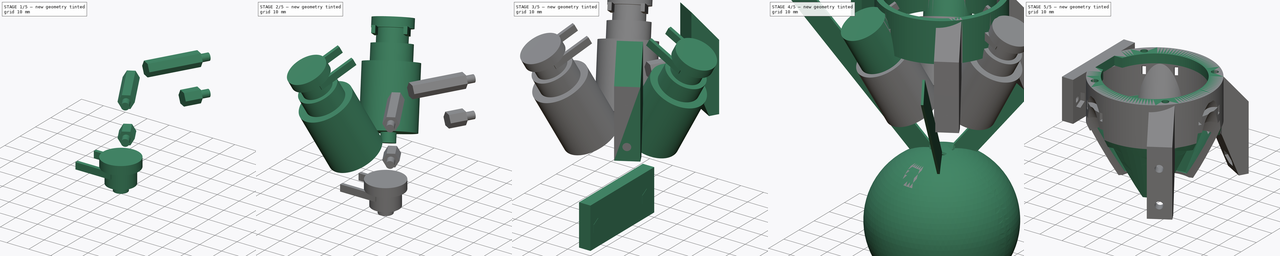
[diagram: build sequence overview — one tinted view per stage of 5, left to right]
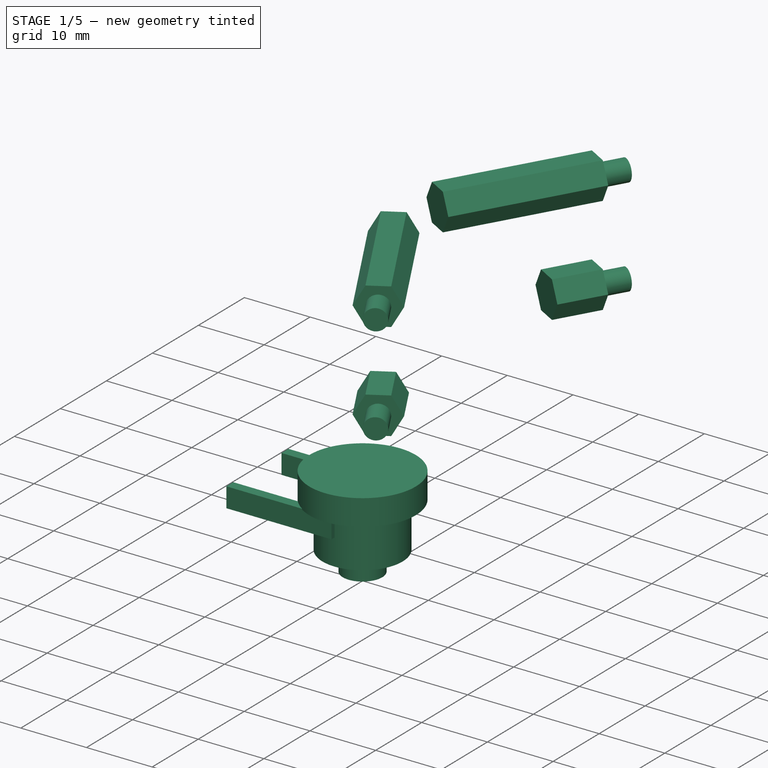
[diagram: stage 1 of 5 — iso view after this stage's code; geometry added in this stage tinted green]
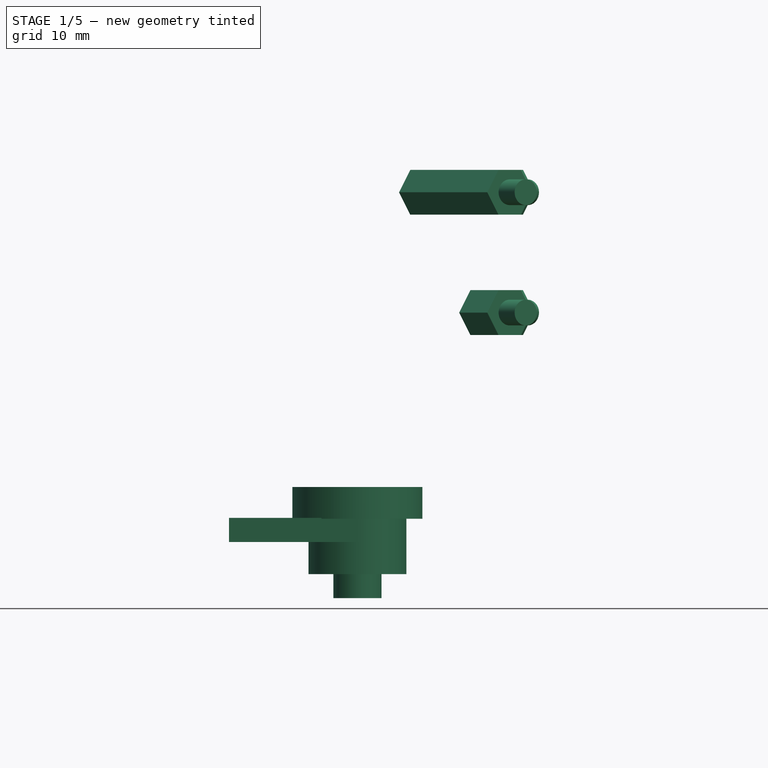
[diagram: stage 1 of 5 — front view after this stage's code; geometry added in this stage tinted green]
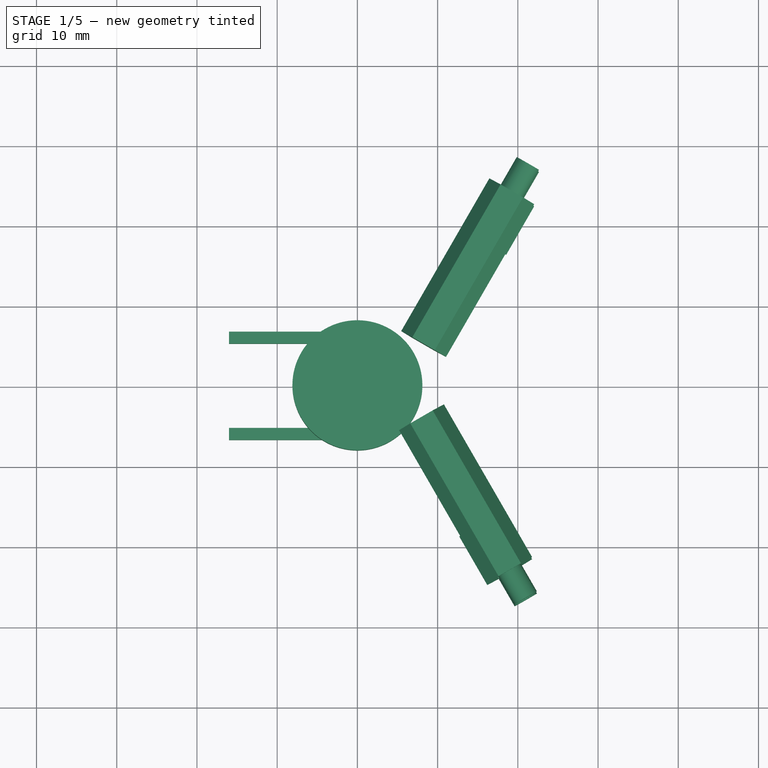
[diagram: stage 1 of 5 — top view after this stage's code; geometry added in this stage tinted green]
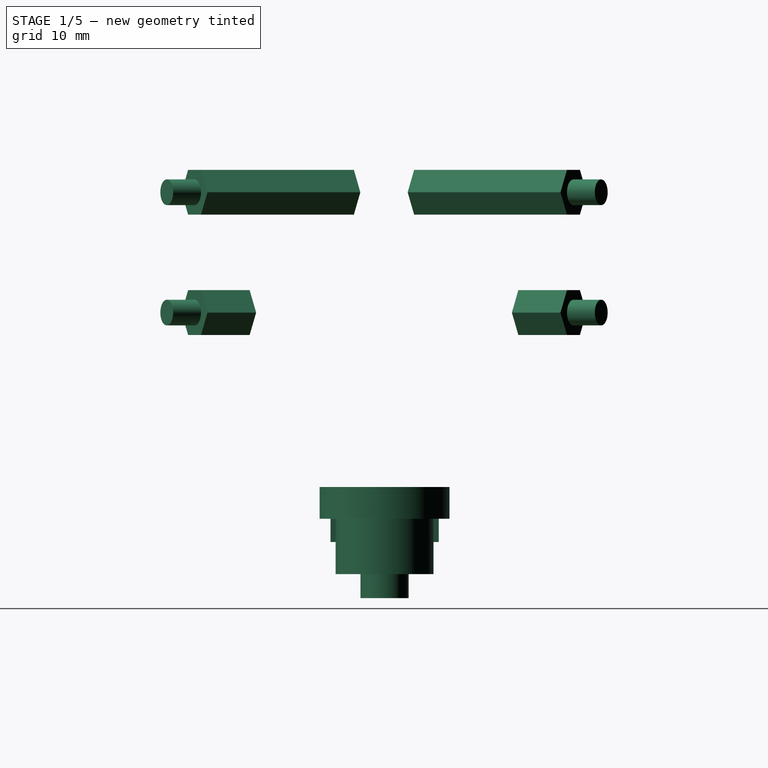
[diagram: stage 1 of 5 — right view after this stage's code; geometry added in this stage tinted green]
FCSTD DOCUMENT  (FreeCAD 0.19R)
Label: hotend-diamond-blower-40mm-fan
License: All rights reserved
LicenseURL: http://en.wikipedia.org/wiki/All_rights_reserved
objects: Part::Cylinder×30, Part::Fuse×23, Part::Box×17, Part::MultiFuse×12, Part::Prism×8, Part::Cut×7, Sketcher::SketchObject×3, Part::Cone×2, Part::Sphere×2, Part::FeaturePython×2, PartDesign::Pocket×2, PartDesign::FeatureBase×1, PartDesign::Pad×1, PartDesign::Body×1
note: 114 computed .brp shape members not serialized (recipe doc carries the construction recipe); baked Part::Feature solids carry a one-line shape summary decoded from their .brp

FEATURE [Part::Cylinder] cylinder025
  Angle = 360
  AttacherType = Attacher::AttachEngine3D
  Height = 8
  Placement = pos=(0,0,-1) rot=(0,0,1;0rad)
  Radius = 6.1
FEATURE [Part::Cylinder] cylinder026
  Angle = 360
  AttacherType = Attacher::AttachEngine3D
  Height = 3.95
  Placement = pos=(0,0,5.9) rot=(0,0,1;0rad)
  Radius = 8.1
FEATURE [Part::Box] cube015
  AttacherType = Attacher::AttachEngine3D
  Height = 3.01
  Length = 16
  Placement = pos=(-16,-6.75,2.995) rot=(0,0,1;0rad)
  Width = 1.5
FEATURE [Part::Box] cube016
  AttacherType = Attacher::AttachEngine3D
  Height = 3.01
  Length = 16
  Placement = pos=(-16,5.25,2.995) rot=(0,0,1;0rad)
  Width = 1.5
FEATURE [Part::Fuse] Group006
  Base = -> cube015
  Tool = -> cube016
FEATURE [Part::Cylinder] cylinder027
  Angle = 360
  AttacherType = Attacher::AttachEngine3D
  Height = 4
  Placement = pos=(0,0,0) rot=(1,0,0;3.14159rad)
  Radius = 3
FEATURE [Part::Cylinder] cylinder028
  Angle = 360
  AttacherType = Attacher::AttachEngine3D
  Height = 10
  Radius = 1.6
FEATURE [Part::Prism] prism004
  AttacherType = Attacher::AttachEngine3D
  Circumradius = 3.225
  FirstAngle = 0
  Height = 22
  Placement = pos=(0,0,4) rot=(0,0,1;0rad)
  Polygon = 6
  SecondAngle = 0
FEATURE [Part::Fuse] union018
  Base = -> cylinder028
  Placement = pos=(-21,-5,0) rot=(1,0,0;3.14159rad)
  Tool = -> prism004
FEATURE [Part::Cylinder] cylinder029
  Angle = 360
  AttacherType = Attacher::AttachEngine3D
  Height = 10
  Radius = 1.6
FEATURE [Part::Prism] prism005
  AttacherType = Attacher::AttachEngine3D
  Circumradius = 3.225
  FirstAngle = 0
  Height = 7
  Placement = pos=(0,0,4) rot=(0,0,1;0rad)
  Polygon = 6
  SecondAngle = 0
FEATURE [Part::Fuse] union019
  Base = -> cylinder029
  Placement = pos=(-21,-20,0) rot=(1,0,0;3.14159rad)
  Tool = -> prism005
FEATURE [Part::Fuse] Group008
  Base = -> union018
  Placement = pos=(3.06199,37.5035,51.6) rot=(0.186157,0.694747,0.694747;2.77349rad)
  Tool = -> union019
FEATURE [Part::Cylinder] cylinder030
  Angle = 360
  AttacherType = Attacher::AttachEngine3D
  Height = 10
  Radius = 1.6
FEATURE [Part::Prism] prism006
  AttacherType = Attacher::AttachEngine3D
  Circumradius = 3.225
  FirstAngle = 0
  Height = 22
  Placement = pos=(0,0,4) rot=(0,0,1;0rad)
  Polygon = 6
  SecondAngle = 0
FEATURE [Part::Fuse] union020
  Base = -> cylinder030
  Placement = pos=(-21,-5,0) rot=(1,0,0;3.14159rad)
  Tool = -> prism006
FEATURE [Part::Cylinder] cylinder031
  Angle = 360
  AttacherType = Attacher::AttachEngine3D
  Height = 10
  Radius = 1.6
FEATURE [Part::Prism] prism007
  AttacherType = Attacher::AttachEngine3D
  Circumradius = 3.225
  FirstAngle = 0
  Height = 7
  Placement = pos=(0,0,4) rot=(0,0,1;0rad)
  Polygon = 6
  SecondAngle = 0
FEATURE [Part::Fuse] union021
  Base = -> cylinder031
  Placement = pos=(-21,-20,0) rot=(1,0,0;3.14159rad)
  Tool = -> prism007
FEATURE [Part::Fuse] Group009
  Base = -> union020
  Placement = pos=(39.1753,-16.6535,51.6) rot=(0.935113,0.250563,0.250563;1.63783rad)
  Tool = -> union021
FEATURE [Part::Fuse] Group010
  Base = -> Group008
  Tool = -> Group009
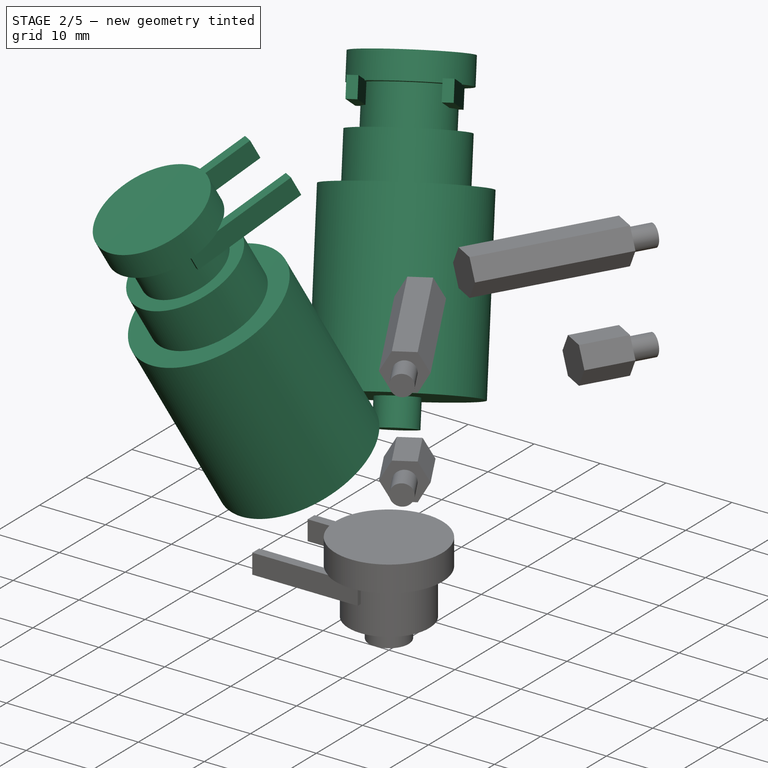
[diagram: stage 2 of 5 — iso view after this stage's code; geometry added in this stage tinted green]
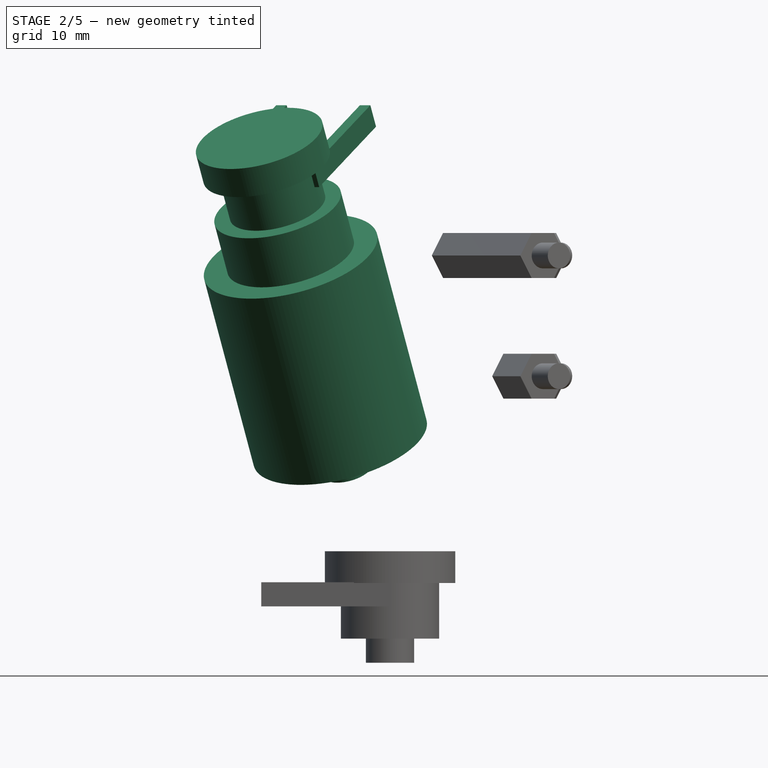
[diagram: stage 2 of 5 — front view after this stage's code; geometry added in this stage tinted green]
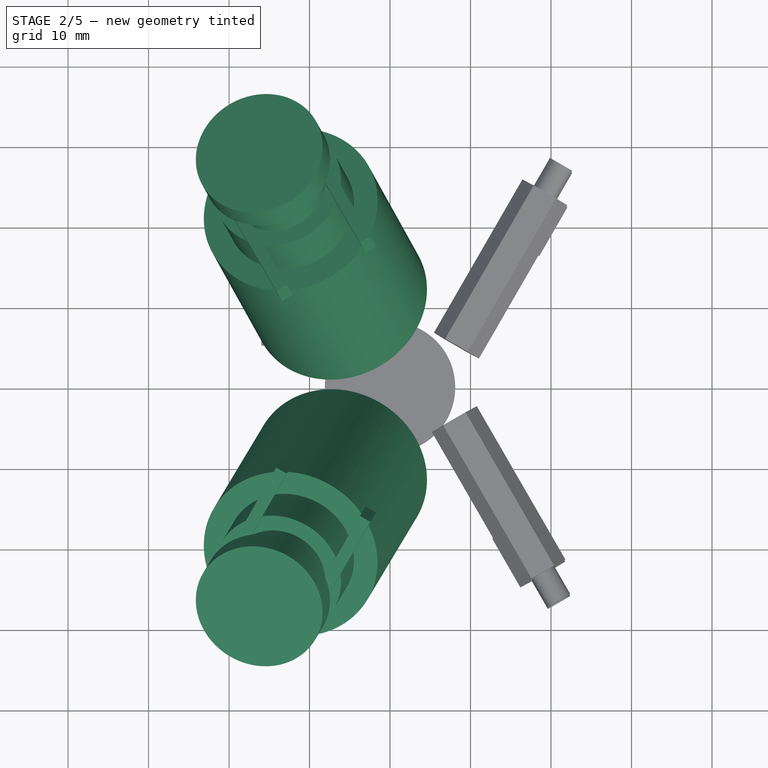
[diagram: stage 2 of 5 — top view after this stage's code; geometry added in this stage tinted green]
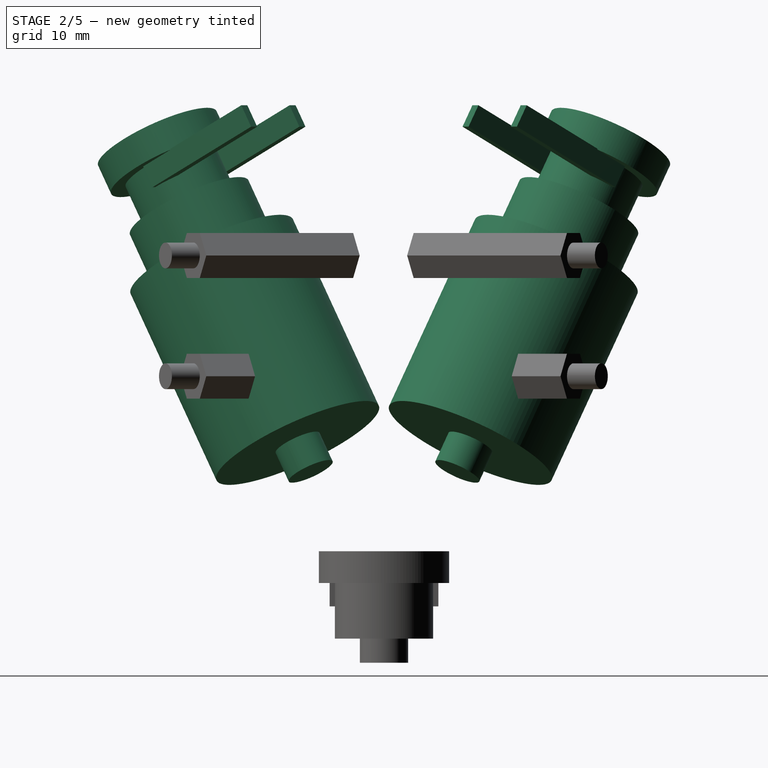
[diagram: stage 2 of 5 — right view after this stage's code; geometry added in this stage tinted green]
FEATURE [Part::Cylinder] cylinder015
  Angle = 360
  AttacherType = Attacher::AttachEngine3D
  Height = 8
  Placement = pos=(0,0,-1) rot=(0,0,1;0rad)
  Radius = 6.1
FEATURE [Part::Cylinder] cylinder016
  Angle = 360
  AttacherType = Attacher::AttachEngine3D
  Height = 3.95
  Placement = pos=(0,0,5.9) rot=(0,0,1;0rad)
  Radius = 8.1
FEATURE [Part::Box] cube011
  AttacherType = Attacher::AttachEngine3D
  Height = 3.01
  Length = 16
  Placement = pos=(-16,-6.75,2.995) rot=(0,0,1;0rad)
  Width = 1.5
FEATURE [Part::Box] cube012
  AttacherType = Attacher::AttachEngine3D
  Height = 3.01
  Length = 16
  Placement = pos=(-16,5.25,2.995) rot=(0,0,1;0rad)
  Width = 1.5
FEATURE [Part::Fuse] Group004
  Base = -> cube011
  Tool = -> cube012
FEATURE [Part::Cylinder] cylinder017
  Angle = 360
  AttacherType = Attacher::AttachEngine3D
  Height = 4
  Placement = pos=(0,0,0) rot=(1,0,0;3.14159rad)
  Radius = 3
FEATURE [Part::Cylinder] cylinder018
  Angle = 360
  AttacherType = Attacher::AttachEngine3D
  Height = 26.2
  Radius = 11.1
FEATURE [Part::Cylinder] cylinder019
  Angle = 360
  AttacherType = Attacher::AttachEngine3D
  Height = 8.1
  Placement = pos=(0,0,-1) rot=(0,0,1;0rad)
  Radius = 8.1
FEATURE [Part::Cylinder] cylinder020
  Angle = 360
  AttacherType = Attacher::AttachEngine3D
  Height = 8
  Placement = pos=(0,0,-1) rot=(0,0,1;0rad)
  Radius = 6.1
FEATURE [Part::Cylinder] cylinder021
  Angle = 360
  AttacherType = Attacher::AttachEngine3D
  Height = 3.95
  Placement = pos=(0,0,5.9) rot=(0,0,1;0rad)
  Radius = 8.1
FEATURE [Part::Box] cube013
  AttacherType = Attacher::AttachEngine3D
  Height = 3.01
  Length = 16
  Placement = pos=(-16,-6.75,2.995) rot=(0,0,1;0rad)
  Width = 1.5
FEATURE [Part::Box] cube014
  AttacherType = Attacher::AttachEngine3D
  Height = 3.01
  Length = 16
  Placement = pos=(-16,5.25,2.995) rot=(0,0,1;0rad)
  Width = 1.5
FEATURE [Part::Fuse] Group005
  Base = -> cube013
  Tool = -> cube014
FEATURE [Part::MultiFuse] union012
  Placement = pos=(0,0,7) rot=(0,0,1;0rad)
  Shapes = -> [cylinder020,cylinder021,Group005]
FEATURE [Part::Fuse] union013
  Base = -> cylinder019
  Placement = pos=(0,0,26) rot=(0,0,1;0rad)
  Tool = -> union012
FEATURE [Part::Cylinder] cylinder022
  Angle = 360
  AttacherType = Attacher::AttachEngine3D
  Height = 4
  Placement = pos=(0,0,0) rot=(1,0,0;3.14159rad)
  Radius = 3
FEATURE [Part::MultiFuse] union014
  Placement = pos=(-6.19702,10.7336,23.3098) rot=(-0.239596,0.138331,0.960967;2.12853rad)
  Shapes = -> [cylinder018,union013,cylinder022]
FEATURE [Part::Cylinder] cylinder023
  Angle = 360
  AttacherType = Attacher::AttachEngine3D
  Height = 26.2
  Radius = 11.1
FEATURE [Part::Cylinder] cylinder024
  Angle = 360
  AttacherType = Attacher::AttachEngine3D
  Height = 8.1
  Placement = pos=(0,0,-1) rot=(0,0,1;0rad)
  Radius = 8.1
FEATURE [Part::MultiFuse] union015
  Placement = pos=(0,0,7) rot=(0,0,1;0rad)
  Shapes = -> [cylinder025,cylinder026,Group006]
FEATURE [Part::Fuse] union016
  Base = -> cylinder024
  Placement = pos=(0,0,26) rot=(0,0,1;0rad)
  Tool = -> union015
FEATURE [Part::MultiFuse] union017
  Placement = pos=(-6.19702,-10.7336,23.3098) rot=(-0.239596,-0.138331,0.960967;4.15466rad)
  Shapes = -> [cylinder023,union016,cylinder027]
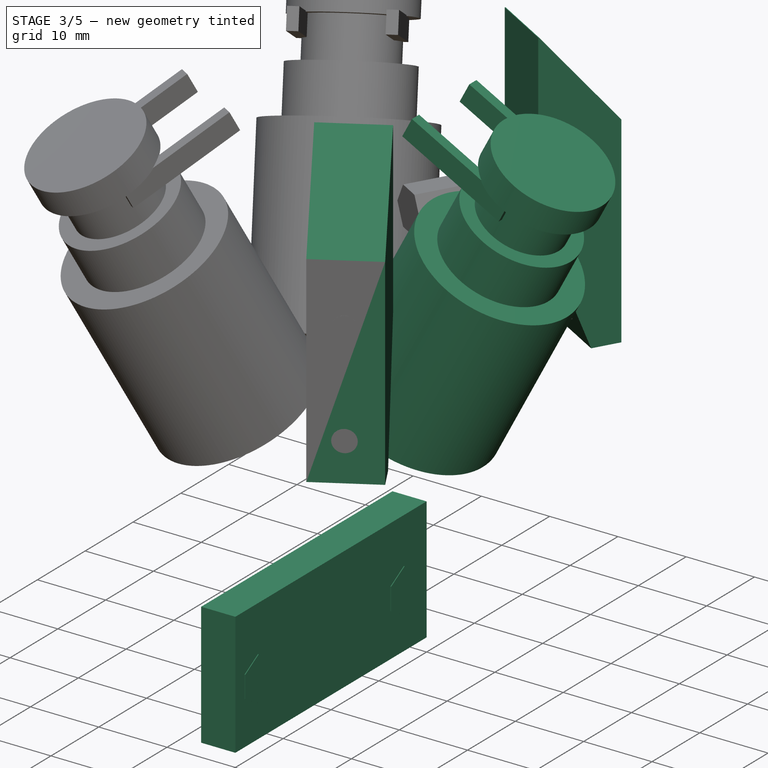
[diagram: stage 3 of 5 — iso view after this stage's code; geometry added in this stage tinted green]
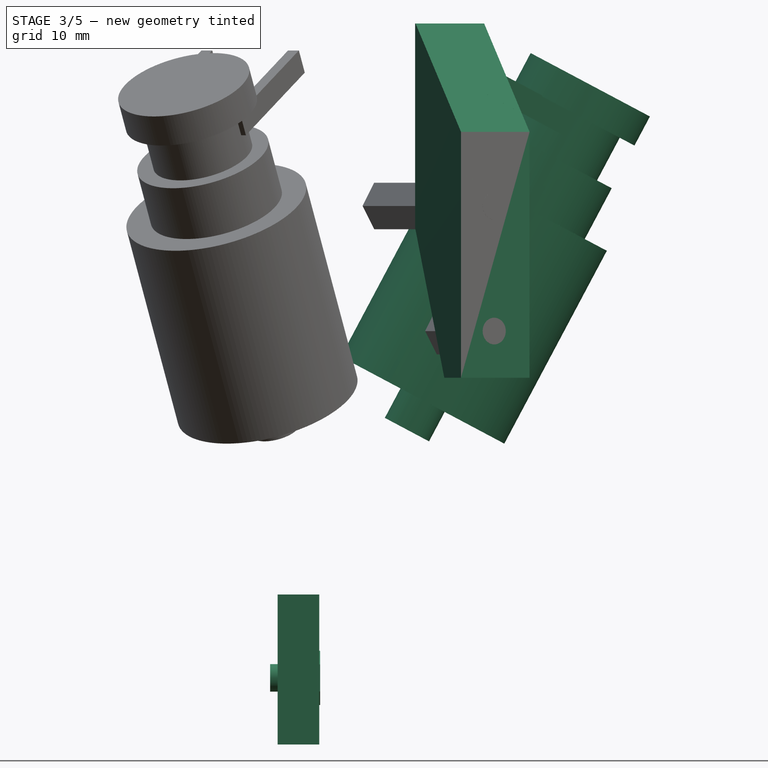
[diagram: stage 3 of 5 — front view after this stage's code; geometry added in this stage tinted green]
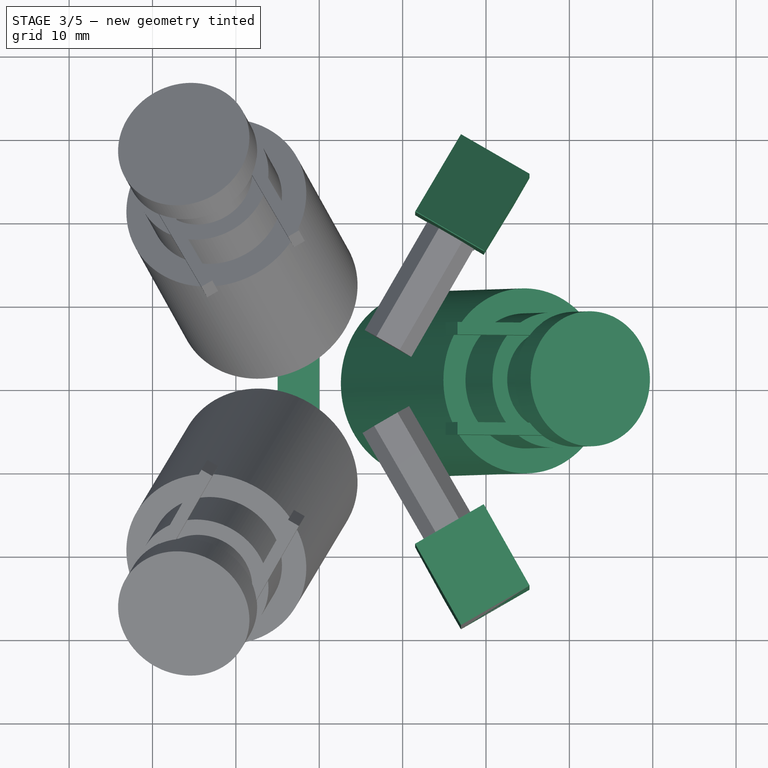
[diagram: stage 3 of 5 — top view after this stage's code; geometry added in this stage tinted green]
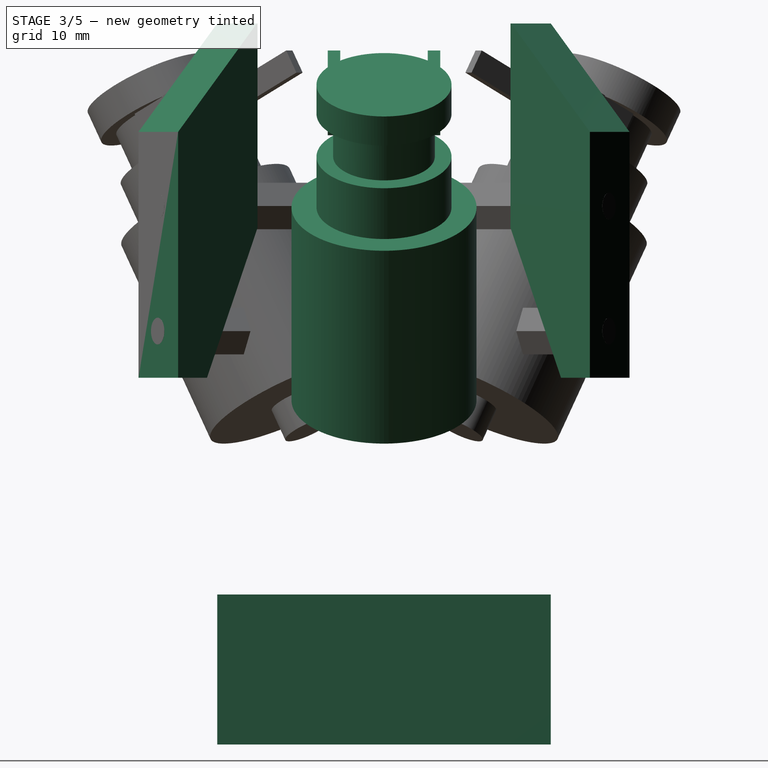
[diagram: stage 3 of 5 — right view after this stage's code; geometry added in this stage tinted green]
FEATURE [Part::Box] cube006
  AttacherType = Attacher::AttachEngine3D
  Height = 18
  Length = 5
  Placement = pos=(-5,-20,-18) rot=(0,0,1;0rad)
  Width = 40
FEATURE [Part::Cylinder] cylinder011
  Angle = 360
  AttacherType = Attacher::AttachEngine3D
  Height = 6
  Radius = 1.65
FEATURE [Part::Prism] prism002
  AttacherType = Attacher::AttachEngine3D
  Circumradius = 3.25
  FirstAngle = 0
  Height = 2
  Polygon = 6
  SecondAngle = 0
FEATURE [Part::Fuse] union006
  Base = -> cylinder011
  Placement = pos=(0.1,-15.25,-10) rot=(0,-1,0;1.5708rad)
  Tool = -> prism002
FEATURE [Part::Cylinder] cylinder012
  Angle = 360
  AttacherType = Attacher::AttachEngine3D
  Height = 6
  Radius = 1.65
FEATURE [Part::Prism] prism003
  AttacherType = Attacher::AttachEngine3D
  Circumradius = 3.25
  FirstAngle = 0
  Height = 2
  Polygon = 6
  SecondAngle = 0
FEATURE [Part::Fuse] union007
  Base = -> cylinder012
  Placement = pos=(0.1,15.25,-10) rot=(0,-1,0;1.5708rad)
  Tool = -> prism003
FEATURE [Part::Fuse] Group003
  Base = -> union006
  Tool = -> union007
FEATURE [Part::Box] cube007
  AttacherType = Attacher::AttachEngine3D
  Height = 29.5
  Length = 9.5
  Width = 4
FEATURE [Part::Box] cube008
  AttacherType = Attacher::AttachEngine3D
  Height = 24.5
  Length = 9.5
  Placement = pos=(0,10.9,18) rot=(0,0,1;0rad)
  Width = 0.1
FEATURE [Part::FeaturePython] hull  # WARN: FeaturePython — macro-defined, semantics opaque (R4)
  Arguments = []
  Children = -> [cube007,cube008]
  Operation = hull
  Placement = pos=(25.2272,24.6949,26) rot=(0,0,1;2.61799rad)
FEATURE [Part::Box] cube009
  AttacherType = Attacher::AttachEngine3D
  Height = 29.5
  Length = 9.5
  Width = 4
FEATURE [Part::Box] cube010
  AttacherType = Attacher::AttachEngine3D
  Height = 24.5
  Length = 9.5
  Placement = pos=(0,10.9,18) rot=(0,0,1;0rad)
  Width = 0.1
FEATURE [Part::FeaturePython] hull001  # WARN: FeaturePython — macro-defined, semantics opaque (R4)
  Arguments = []
  Children = -> [cube009,cube010]
  Operation = hull
  Placement = pos=(17,-29.4449,26) rot=(0,0,1;0.523599rad)
FEATURE [Part::Cylinder] cylinder013
  Angle = 360
  AttacherType = Attacher::AttachEngine3D
  Height = 26.2
  Radius = 11.1
FEATURE [Part::Cylinder] cylinder014
  Angle = 360
  AttacherType = Attacher::AttachEngine3D
  Height = 8.1
  Placement = pos=(0,0,-1) rot=(0,0,1;0rad)
  Radius = 8.1
FEATURE [Part::MultiFuse] union009
  Placement = pos=(0,0,7) rot=(0,0,1;0rad)
  Shapes = -> [cylinder015,cylinder016,Group004]
FEATURE [Part::Fuse] union010
  Base = -> cylinder014
  Placement = pos=(0,0,26) rot=(0,0,1;0rad)
  Tool = -> union009
FEATURE [Part::MultiFuse] union011
  Placement = pos=(12.394,0,23.3098) rot=(0,1,0;0.488692rad)
  Shapes = -> [cylinder013,union010,cylinder017]
FEATURE [Part::MultiFuse] Group007
  Shapes = -> [union011,union014,union017]
FEATURE [Part::Fuse] union022
  Base = -> Group007
  Tool = -> Group010
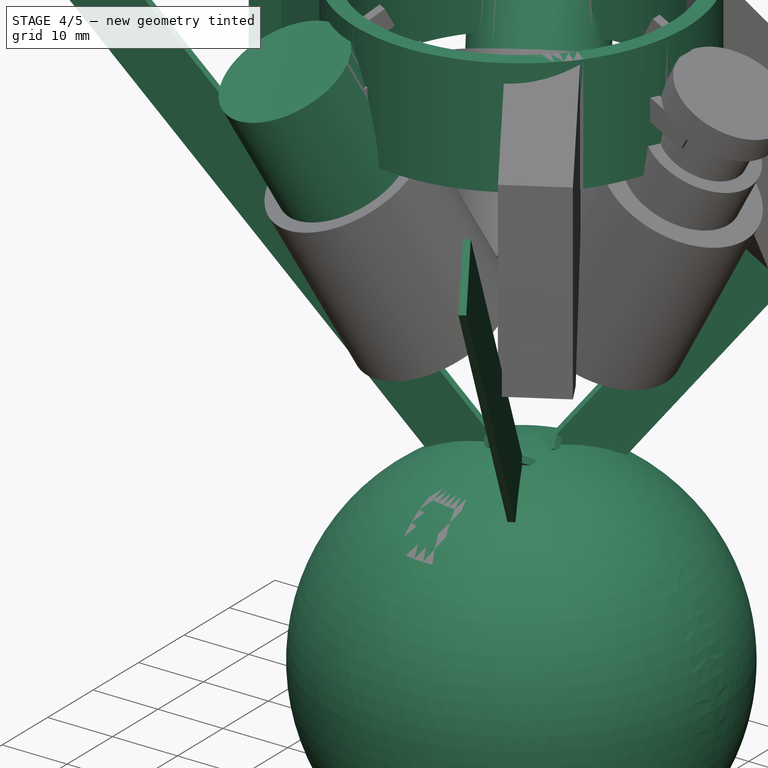
[diagram: stage 4 of 5 — iso view after this stage's code; geometry added in this stage tinted green]
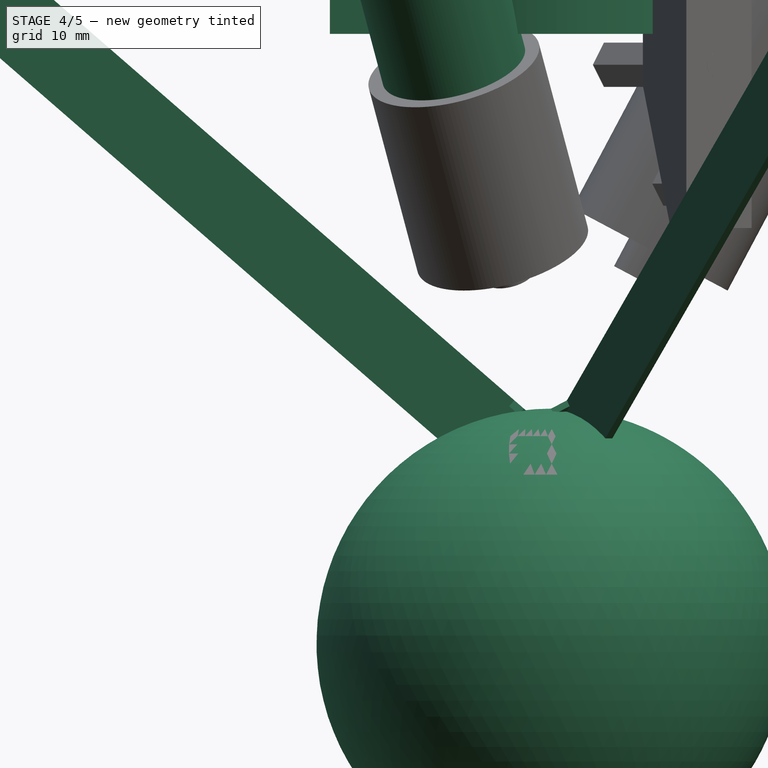
[diagram: stage 4 of 5 — front view after this stage's code; geometry added in this stage tinted green]
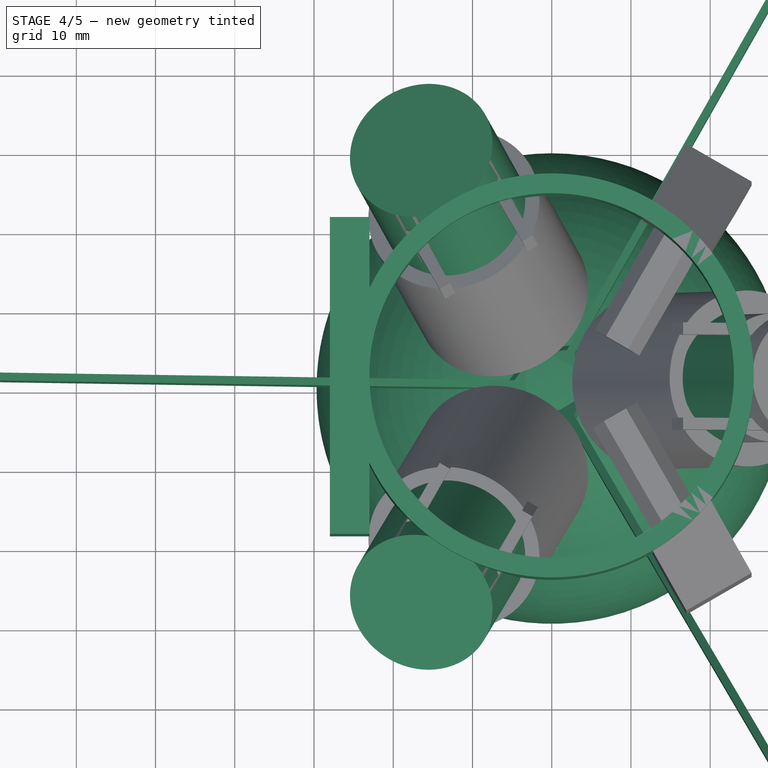
[diagram: stage 4 of 5 — top view after this stage's code; geometry added in this stage tinted green]
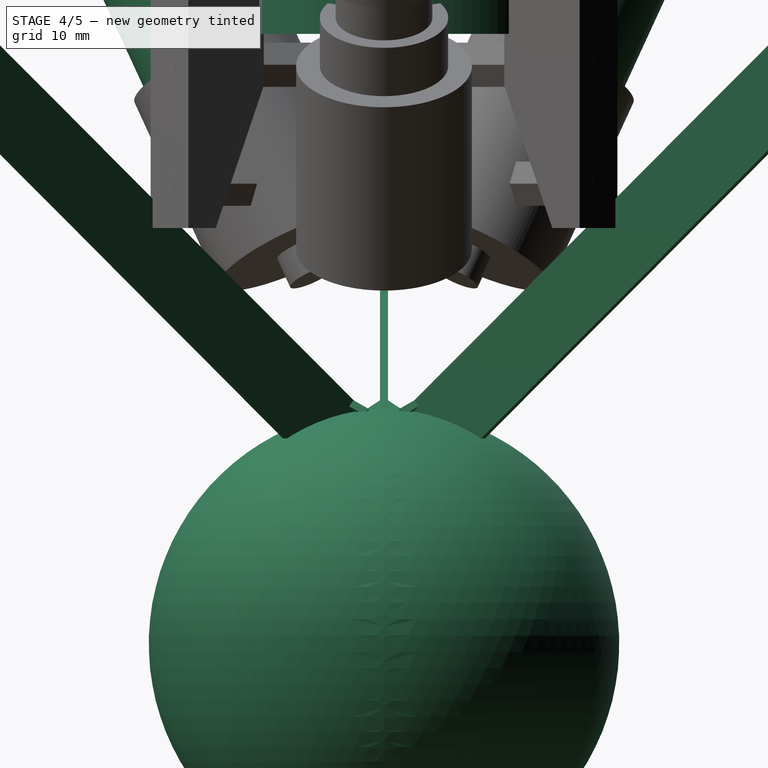
[diagram: stage 4 of 5 — right view after this stage's code; geometry added in this stage tinted green]
FEATURE [Part::Cylinder] cylinder004
  Angle = 360
  AttacherType = Attacher::AttachEngine3D
  Height = 17.75
  Placement = pos=(-12.3002,21.3045,46.2665) rot=(-0.239596,0.138331,0.960967;2.12853rad)
  Radius = 9.25
FEATURE [Part::Cylinder] cylinder005
  Angle = 360
  AttacherType = Attacher::AttachEngine3D
  Height = 17.75
  Placement = pos=(-12.3002,-21.3045,46.2665) rot=(-0.239596,-0.138331,0.960967;4.15466rad)
  Radius = 9.25
FEATURE [Part::Sphere] sphere001
  Angle1 = -90
  Angle2 = 90
  Angle3 = 360
  AttacherType = Attacher::AttachEngine3D
  Placement = pos=(0,0,-26.49) rot=(0,0,1;0rad)
  Radius = 29.6923
FEATURE [Part::Box] cube
  AttacherType = Attacher::AttachEngine3D
  Height = 100
  Length = 10
  Placement = pos=(0,0.5,0) rot=(0,0,1;3.14159rad)
  Width = 1
FEATURE [Part::Box] cube001
  AttacherType = Attacher::AttachEngine3D
  Height = 1
  Length = 3
  Placement = pos=(0,0,-2.12132) rot=(0.357407,-0.862856,-0.357407;1.71777rad)
  Width = 3
FEATURE [Part::Fuse] union002
  Base = -> cube
  Placement = pos=(-3.5,0,0) rot=(0,-1,0;0.855211rad)
  Tool = -> cube001
FEATURE [Part::Box] cube002
  AttacherType = Attacher::AttachEngine3D
  Height = 100
  Length = 10
  Placement = pos=(0,0.5,0) rot=(0,0,1;3.14159rad)
  Width = 1
FEATURE [Part::Box] cube003
  AttacherType = Attacher::AttachEngine3D
  Height = 1
  Length = 3
  Placement = pos=(0,0,-2.12132) rot=(0.357407,-0.862856,-0.357407;1.71777rad)
  Width = 3
FEATURE [Part::Fuse] union003
  Base = -> cube002
  Placement = pos=(1.75,-3.03109,0) rot=(0.403295,-0.232843,0.88495;2.19689rad)
  Tool = -> cube003
FEATURE [Part::Box] cube004
  AttacherType = Attacher::AttachEngine3D
  Height = 100
  Length = 10
  Placement = pos=(0,0.5,0) rot=(0,0,1;3.14159rad)
  Width = 1
FEATURE [Part::Box] cube005
  AttacherType = Attacher::AttachEngine3D
  Height = 1
  Length = 3
  Placement = pos=(0,0,-2.12132) rot=(0.357407,-0.862856,-0.357407;1.71777rad)
  Width = 3
FEATURE [Part::Fuse] union004
  Base = -> cube004
  Placement = pos=(1.75,3.03109,0) rot=(0.403295,0.232843,0.88495;4.08629rad)
  Tool = -> cube005
FEATURE [Part::MultiFuse] Group001
  Placement = pos=(0,0,3.19233) rot=(0,0,1;0rad)
  Shapes = -> [union002,union003,union004]
FEATURE [Part::Cylinder] cylinder006
  Angle = 360
  AttacherType = Attacher::AttachEngine3D
  Height = 18
  Placement = pos=(0,0,50.5) rot=(0,0,1;0rad)
  Radius = 25.5
FEATURE [Part::Cylinder] cylinder007
  Angle = 360
  AttacherType = Attacher::AttachEngine3D
  Height = 20
  Placement = pos=(0,0,49.5) rot=(0,0,1;0rad)
  Radius = 23
FEATURE [Part::Cylinder] cylinder008
  Angle = 360
  AttacherType = Attacher::AttachEngine3D
  Height = 17.75
  Placement = pos=(24.6003,0,46.2665) rot=(0,1,0;0.488692rad)
  Radius = 9.25
FEATURE [Part::Cylinder] cylinder009
  Angle = 360
  AttacherType = Attacher::AttachEngine3D
  Height = 17.75
  Placement = pos=(-12.3002,21.3045,46.2665) rot=(-0.239596,0.138331,0.960967;2.12853rad)
  Radius = 9.25
FEATURE [Part::Cylinder] cylinder010
  Angle = 360
  AttacherType = Attacher::AttachEngine3D
  Height = 17.75
  Placement = pos=(-12.3002,-21.3045,46.2665) rot=(-0.239596,-0.138331,0.960967;4.15466rad)
  Radius = 9.25
FEATURE [Part::MultiFuse] Group002
  Shapes = -> [cylinder008,cylinder009,cylinder010]
FEATURE [Part::Cut] difference003
  Base = -> cylinder007
  Tool = -> Group002
FEATURE [Part::Cut] difference004
  Base = -> cylinder006
  Tool = -> difference003
FEATURE [Part::Cut] difference005
  Base = -> cube006
  Placement = pos=(-23,0,68.5) rot=(0,0,1;0rad)
  Tool = -> Group003
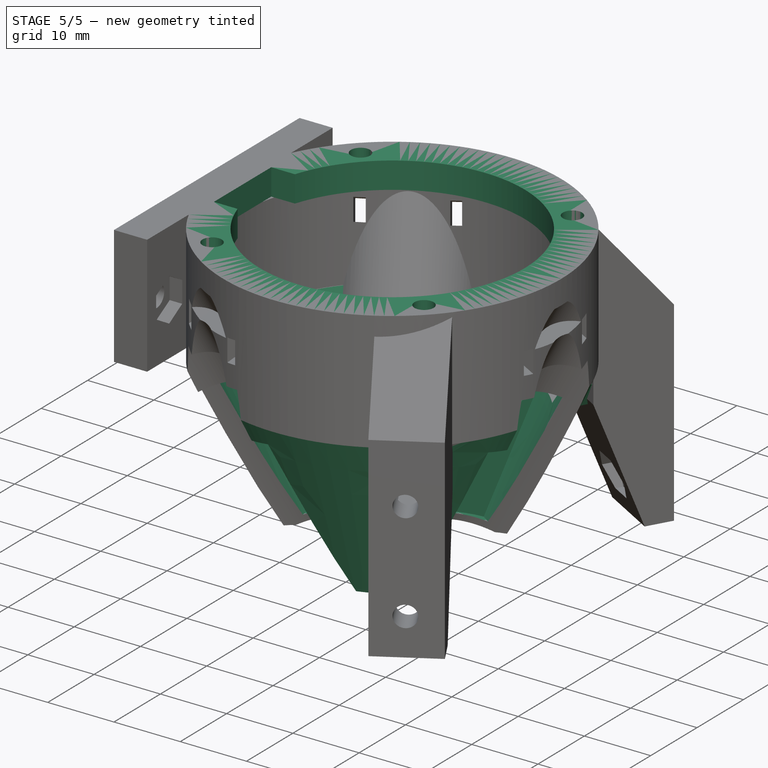
[diagram: stage 5 of 5 — iso view after this stage's code; geometry added in this stage tinted green]
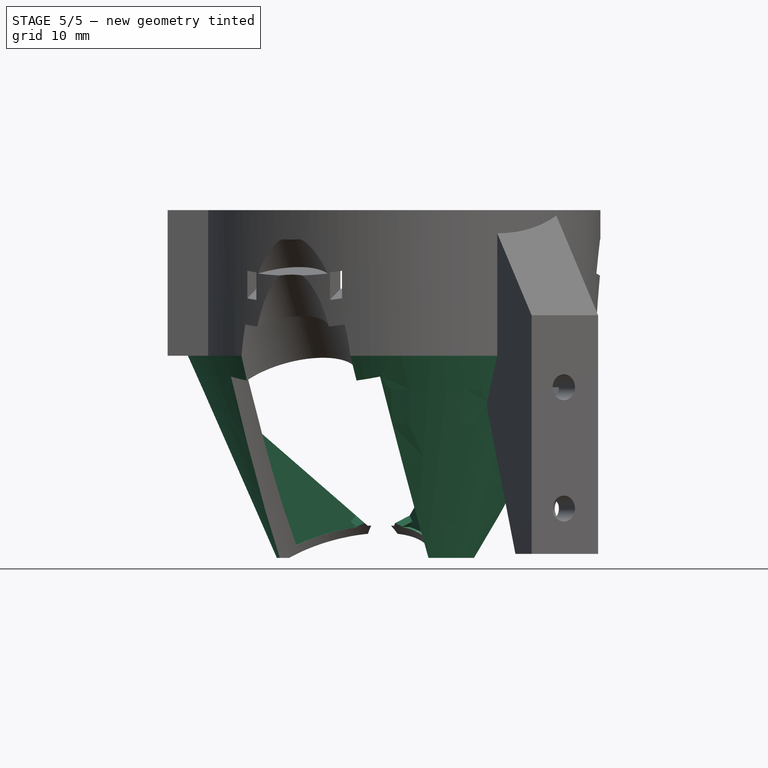
[diagram: stage 5 of 5 — front view after this stage's code; geometry added in this stage tinted green]
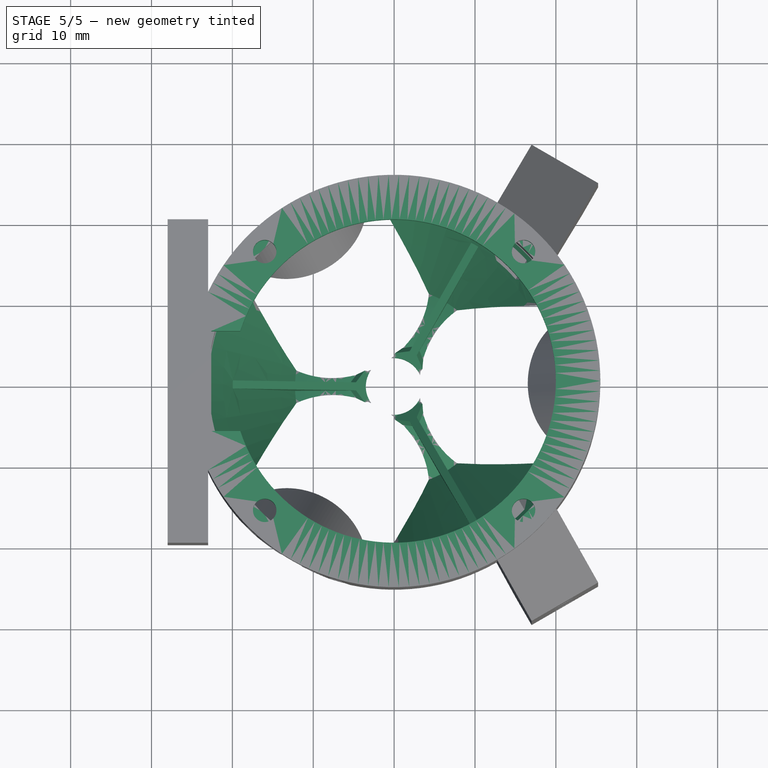
[diagram: stage 5 of 5 — top view after this stage's code; geometry added in this stage tinted green]
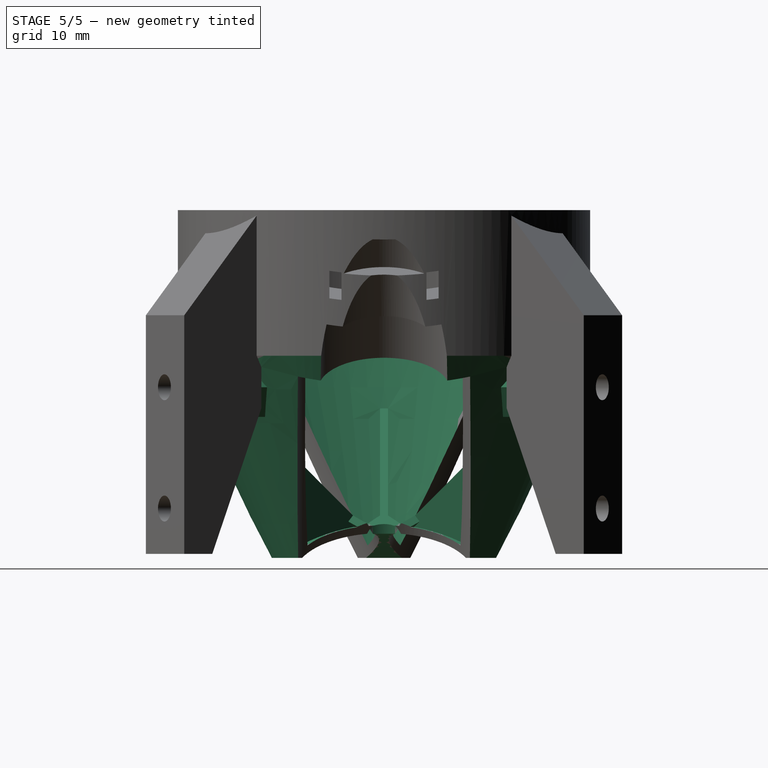
[diagram: stage 5 of 5 — right view after this stage's code; geometry added in this stage tinted green]
FEATURE [Part::Cone] cylinder
  Angle = 360
  AttacherType = Attacher::AttachEngine3D
  Height = 25
  Radius1 = 14.5
  Radius2 = 25.5
FEATURE [Part::Prism] prism
  AttacherType = Attacher::AttachEngine3D
  Circumradius = 4.225
  FirstAngle = 0
  Height = 20
  Placement = pos=(20.7435,26.1288,46.6) rot=(0.186157,0.694747,-0.694747;3.50969rad)
  Polygon = 6
  SecondAngle = 0
FEATURE [Part::Prism] prism001
  AttacherType = Attacher::AttachEngine3D
  Circumradius = 4.225
  FirstAngle = 0
  Height = 20
  Placement = pos=(10.7435,-8.80833,46.6) rot=(-0.186157,0.694747,-0.694747;2.77349rad)
  Polygon = 6
  SecondAngle = 0
FEATURE [Part::Fuse] Matrix_Union
  Base = -> prism
  Placement = pos=(0,0,-25.5) rot=(0,0,1;0rad)
  Tool = -> prism001
FEATURE [Part::Fuse] union
  Base = -> cylinder
  Tool = -> Matrix_Union
FEATURE [Part::Sphere] sphere
  Angle1 = -90
  Angle2 = 90
  Angle3 = 360
  AttacherType = Attacher::AttachEngine3D
  Placement = pos=(0,0,-25.49) rot=(0,0,1;0rad)
  Radius = 28.6923
FEATURE [Part::Cylinder] cylinder001
  Angle = 360
  AttacherType = Attacher::AttachEngine3D
  Height = 2.39233
  Placement = pos=(0,0,2.19233) rot=(0,0,1;0rad)
  Radius = 3.5
FEATURE [Part::Cone] cylinder002
  Angle = 360
  AttacherType = Attacher::AttachEngine3D
  Height = 24.2
  Radius1 = 12
  Radius2 = 23
FEATURE [Part::Cylinder] cylinder003
  Angle = 360
  AttacherType = Attacher::AttachEngine3D
  Height = 17.75
  Placement = pos=(24.6003,0,46.2665) rot=(0,1,0;0.488692rad)
  Radius = 9.25
FEATURE [Part::MultiFuse] Group
  Placement = pos=(0,0,-26.49) rot=(0,0,1;0rad)
  Shapes = -> [cylinder003,cylinder004,cylinder005]
FEATURE [Part::Fuse] union001
  Base = -> Group
  Tool = -> sphere001
FEATURE [Part::Cut] difference
  Base = -> cylinder002
  Tool = -> union001
FEATURE [Part::Cut] difference001
  Base = -> difference
  Placement = pos=(0,0,1) rot=(0,0,1;0rad)
  Tool = -> Group001
FEATURE [Part::MultiFuse] union005
  Placement = pos=(0,0,-0.01) rot=(0,0,1;0rad)
  Shapes = -> [sphere,cylinder001,difference001]
FEATURE [Part::Cut] difference002
  Base = -> union
  Placement = pos=(0,0,25.5) rot=(0,0,1;0rad)
  Tool = -> union005
FEATURE [Part::MultiFuse] union008
  Shapes = -> [difference002,difference004,difference005,hull,hull001]
FEATURE [Part::Cut] difference006
  Base = -> union008
  Placement = pos=(0,8e-15,68.5) rot=(1,0,0;3.14159rad)
  Refine = true
  Tool = -> union022
FEATURE [PartDesign::FeatureBase] BaseFeature
  BaseFeature = -> difference006
FEATURE [Sketcher::SketchObject] Sketch
  ExternalGeometry = -> [BaseFeature]
  FullyConstrained = true
  MapMode = 5
  Placement = pos=(0,0,68.5) rot=(0,0,1;0rad)
  Support = -> [BaseFeature]
  sketch-geometry (6):
    g0: Circle CenterX=0 CenterY=0 CenterZ=0 NormalX=0 NormalY=0 NormalZ=1 AngleXU=0 Radius=23
    g1: LineSegment StartX=-16 StartY=16 StartZ=0 EndX=16 EndY=16 EndZ=0
    g2: LineSegment StartX=16 StartY=16 StartZ=0 EndX=16 EndY=-16 EndZ=0
    g3: LineSegment StartX=16 StartY=-16 StartZ=0 EndX=-16 EndY=-16 EndZ=0
    g4: LineSegment StartX=-16 StartY=-16 StartZ=0 EndX=-16 EndY=16 EndZ=0
    g5: Circle CenterX=0 CenterY=0 CenterZ=0 NormalX=0 NormalY=0 NormalZ=1 AngleXU=0 Radius=20
  constraints (14):
    c: Coincident(g0,g-1)
    c: Equal(g0,g-8)
    c: Coincident(g1,g2)
    c: Coincident(g2,g3)
    c: Coincident(g3,g4)
    c: Coincident(g4,g1)
    c: Horizontal(g3)
    c: Vertical(g2)
    c: Symmetric(g1,g1,g-2)
    c: Symmetric(g3,g1,g-1)
    c: Equal(g2,g1)
    c: DistanceX(g1,g1) = 32
    c: Coincident(g5,g0)
    c: Radius(g5) = 20
FEATURE [PartDesign::Pad] Pad
  BaseFeature = -> BaseFeature
  Direction = (1,1,1)
  Length = 4
  Length2 = 100
  Profile = -> Sketch
  Refine = true
  Reversed = true
  Type = 0
FEATURE [Sketcher::SketchObject] Sketch001
  FullyConstrained = true
  MapMode = 5
  Placement = pos=(0,0,68.5) rot=(0,0,1;0rad)
  Support = -> [Pad]
  sketch-geometry (8):
    g0: LineSegment StartX=-16 StartY=16 StartZ=0 EndX=16 EndY=16 EndZ=0
    g1: LineSegment StartX=16 StartY=16 StartZ=0 EndX=16 EndY=-16 EndZ=0
    g2: LineSegment StartX=16 StartY=-16 StartZ=0 EndX=-16 EndY=-16 EndZ=0
    g3: LineSegment StartX=-16 StartY=-16 StartZ=0 EndX=-16 EndY=16 EndZ=0
    g4: Circle CenterX=-16 CenterY=16 CenterZ=0 NormalX=0 NormalY=0 NormalZ=1 AngleXU=0 Radius=1.45
    g5: Circle CenterX=16 CenterY=16 CenterZ=0 NormalX=0 NormalY=0 NormalZ=1 AngleXU=0 Radius=1.45
    g6: Circle CenterX=16 CenterY=-16 CenterZ=0 NormalX=0 NormalY=0 NormalZ=1 AngleXU=0 Radius=1.45
    g7: Circle CenterX=-16 CenterY=-16 CenterZ=0 NormalX=0 NormalY=0 NormalZ=1 AngleXU=0 Radius=1.45
  constraints (18):
    c: Coincident(g0,g1)
    c: Coincident(g1,g2)
    c: Coincident(g2,g3)
    c: Coincident(g3,g0)
    c: Horizontal(g2)
    c: Vertical(g3)
    c: Symmetric(g0,g0,g-2)
    c: Symmetric(g0,g1,g-1)
    c: Equal(g0,g1)
    c: DistanceX(g0,g0) = 32
    c: Coincident(g4,g0)
    c: Coincident(g5,g0)
    c: Coincident(g6,g1)
    c: Coincident(g7,g2)
    c: Radius(g4) = 1.45
    c: Equal(g4,g5)
    c: Equal(g4,g7)
    c: Equal(g4,g6)
FEATURE [PartDesign::Pocket] Pocket
  BaseFeature = -> Pad
  Length = 4
  Length2 = 100
  Profile = -> Sketch001
  Type = 0
FEATURE [Sketcher::SketchObject] Sketch002
  FullyConstrained = false
  MapMode = 5
  Placement = pos=(0,0,68.5) rot=(0,0,1;0rad)
  Support = -> [Pocket]
  sketch-geometry (8):
    g0: LineSegment StartX=-20 StartY=20 StartZ=0 EndX=20 EndY=20 EndZ=0
    g1: LineSegment StartX=20 StartY=20 StartZ=0 EndX=20 EndY=-20 EndZ=0
    g2: LineSegment StartX=20 StartY=-20 StartZ=0 EndX=-20 EndY=-20 EndZ=0
    g3: LineSegment StartX=-20 StartY=-20 StartZ=0 EndX=-20 EndY=20 EndZ=0
    g4: LineSegment StartX=-22.6024 StartY=6.18116 StartZ=0 EndX=-10.9395 EndY=6.18116 EndZ=0
    g5: LineSegment StartX=-10.9395 StartY=6.18116 StartZ=0 EndX=-10.9395 EndY=-6.18116 EndZ=0
    g6: LineSegment StartX=-10.9395 StartY=-6.18116 StartZ=0 EndX=-22.6024 EndY=-6.18116 EndZ=0
    g7: LineSegment StartX=-22.6024 StartY=-6.18116 StartZ=0 EndX=-22.6024 EndY=6.18116 EndZ=0
  constraints (18):
    c: Coincident(g0,g1)
    c: Coincident(g1,g2)
    c: Coincident(g2,g3)
    c: Coincident(g3,g0)
    c: Horizontal(g2)
    c: Vertical(g1)
    c: Symmetric(g0,g0,g-2)
    c: Symmetric(g0,g2,g-1)
    c: Equal(g0,g3)
    c: DistanceX(g0,g0) = 40
    c: Coincident(g4,g5)
    c: Coincident(g5,g6)
    c: Coincident(g6,g7)
    c: Coincident(g7,g4)
    c: Horizontal(g4)
    c: Horizontal(g6)
    c: Vertical(g7)
    c: Symmetric(g4,g5,g-1)
FEATURE [PartDesign::Pocket] Pocket001
  BaseFeature = -> Pocket
  Length = 4
  Length2 = 100
  Profile = -> Sketch002
  Type = 0
FEATURE [PartDesign::Body] Body
  BaseFeature = -> difference006
  Group = -> [BaseFeature,Sketch,Pad,Sketch001,Pocket,Sketch002,Pocket001]
  Origin = -> Origin
  Tip = -> Pocket001
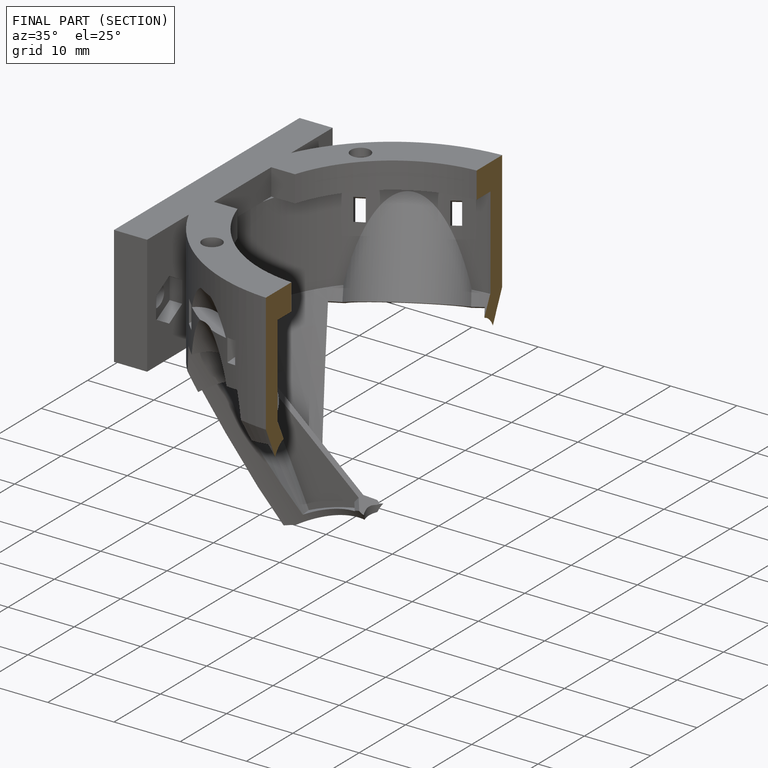
[diagram: finished part — half-section view (interior)]
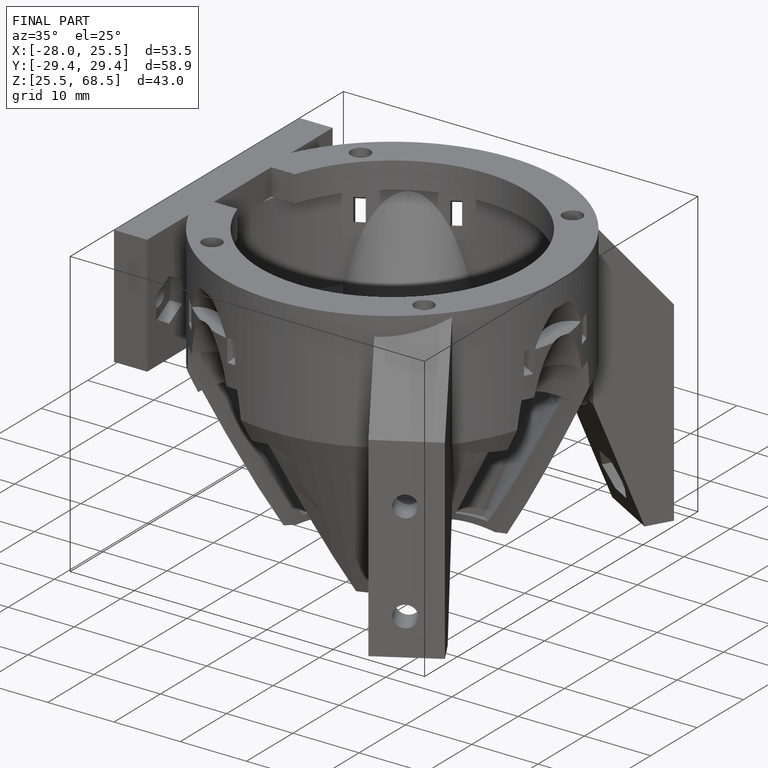
[diagram: finished part — iso view with bounding-box wireframe]
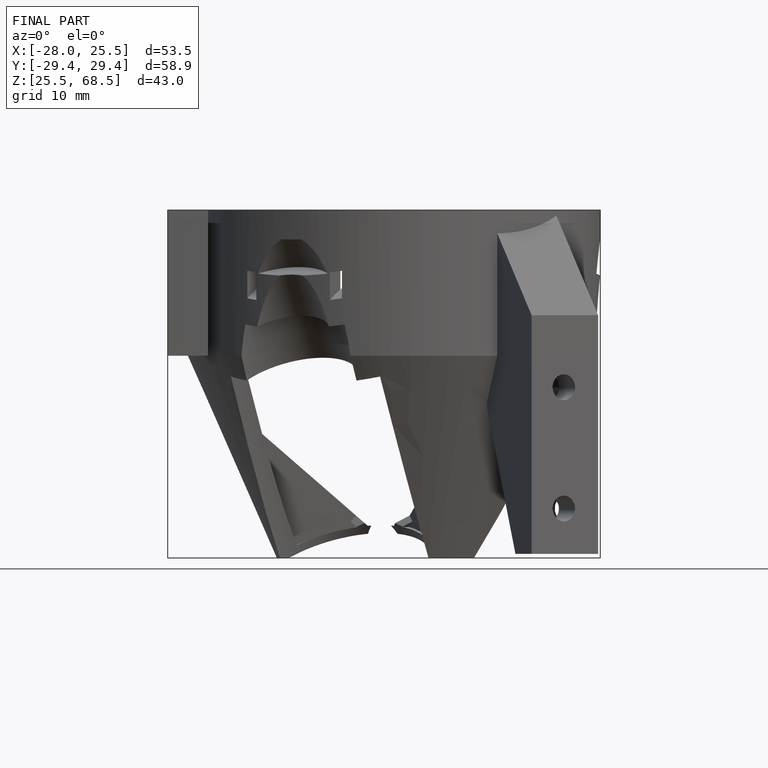
[diagram: finished part — front view with bounding-box wireframe]
